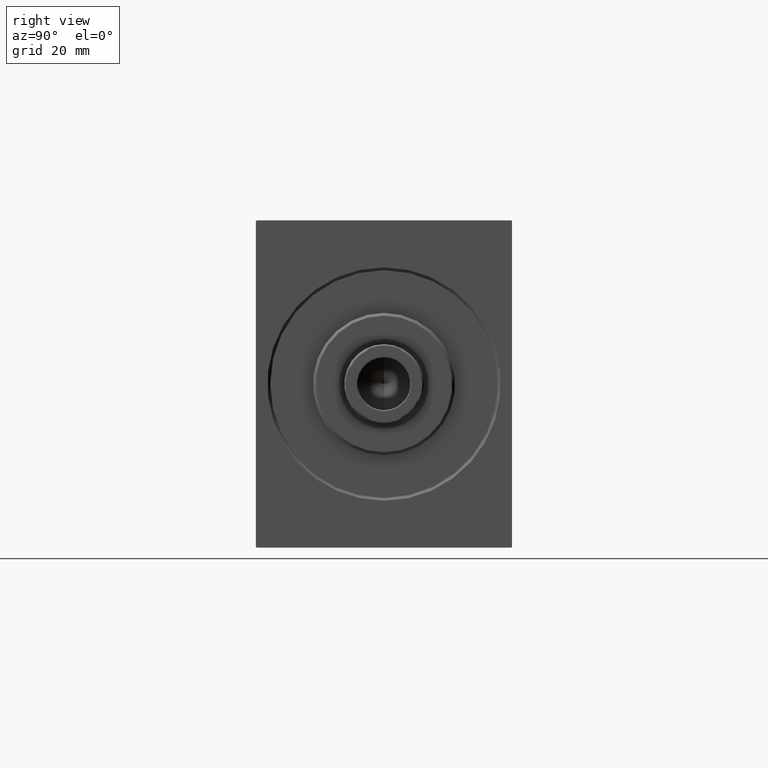
[diagram: clean part render]
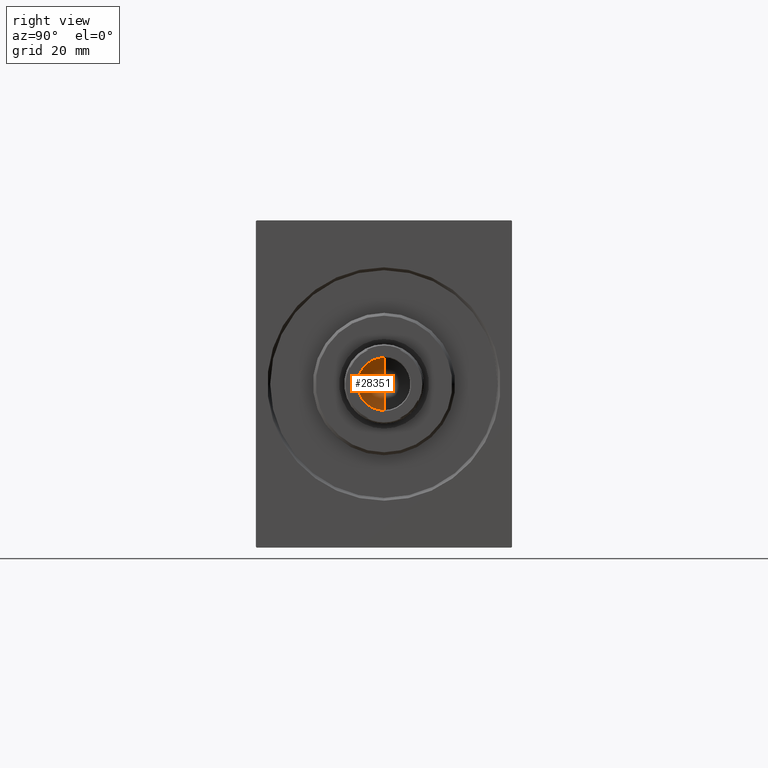
[diagram: same view with one face highlighted and labeled with its STEP entity id]
A machine part, right view. The second image highlights one B-rep face of the part: STEP entity #28351.
In plain terms, the highlighted conical surface has half-angle 59 deg.
Its self-contained STEP definition (entity closure, byte-faithful):
#861 = FACE_OUTER_BOUND ( 'NONE', #1893, .T. ) ;
#1893 = EDGE_LOOP ( 'NONE', ( #35735, #20046, #20665 ) ) ;
#3449 = EDGE_CURVE ( 'NONE', #27767, #30494, #6681, .T. ) ;
#4798 = LINE ( 'NONE', #25160, #23144 ) ;
#6277 = LINE ( 'NONE', #19956, #7213 ) ;
#6681 = CIRCLE ( 'NONE', #40612, 9.249999999999994671 ) ;
#7213 = VECTOR ( 'NONE', #16685, 1000.000000000000000 ) ;
#7794 = DIRECTION ( 'NONE',  ( -0.000000000000000000, -0.000000000000000000, 1.000000000000000000 ) ) ;
#14086 = DIRECTION ( 'NONE',  ( 1.000000000000000000, 0.000000000000000000, 0.000000000000000000 ) ) ;
#14087 = DIRECTION ( 'NONE',  ( 1.000000000000000000, 0.000000000000000000, 0.000000000000000000 ) ) ;
#16685 = DIRECTION ( 'NONE',  ( -0.8571673007021113344, 1.049727191138617463E-16, 0.5150380749100558209 ) ) ;
#19137 = AXIS2_PLACEMENT_3D ( 'NONE', #30785, #7794, #14086 ) ;
#19834 = CONICAL_SURFACE ( 'NONE', #19137, 9.249999999999994671, 1.029744258676652535 ) ;
#19956 = CARTESIAN_POINT ( 'NONE',  ( -9.249999999999994671, 1.132798289211300909E-15, 169.0000000000000000 ) ) ;
#20046 = ORIENTED_EDGE ( 'NONE', *, *, #41403, .T. ) ;
#20082 = CARTESIAN_POINT ( 'NONE',  ( -9.249999999999994671, 1.132798289211300909E-15, 169.0000000000000000 ) ) ;
#20627 = CARTESIAN_POINT ( 'NONE',  ( -6.793016015247754405E-15, 0.000000000000000000, 163.4420392739950501 ) ) ;
#20665 = ORIENTED_EDGE ( 'NONE', *, *, #3449, .T. ) ;
#22287 = EDGE_CURVE ( 'NONE', #32098, #30494, #4798, .T. ) ;
#23144 = VECTOR ( 'NONE', #24735, 1000.000000000000000 ) ;
#24735 = DIRECTION ( 'NONE',  ( 0.8571673007021113344, 0.000000000000000000, 0.5150380749100558209 ) ) ;
#25160 = CARTESIAN_POINT ( 'NONE',  ( 9.249999999999994671, 0.000000000000000000, 169.0000000000000000 ) ) ;
#25291 = CARTESIAN_POINT ( 'NONE',  ( 9.249999999999994671, 0.000000000000000000, 169.0000000000000000 ) ) ;
#27109 = CARTESIAN_POINT ( 'NONE',  ( 0.000000000000000000, 0.000000000000000000, 169.0000000000000000 ) ) ;
#27767 = VERTEX_POINT ( 'NONE', #20082 ) ;
#28351 = ADVANCED_FACE ( 'NONE', ( #861 ), #19834, .F. ) ;
#30494 = VERTEX_POINT ( 'NONE', #25291 ) ;
#30569 = DIRECTION ( 'NONE',  ( -0.000000000000000000, -0.000000000000000000, 1.000000000000000000 ) ) ;
#30785 = CARTESIAN_POINT ( 'NONE',  ( 0.000000000000000000, 0.000000000000000000, 169.0000000000000000 ) ) ;
#32098 = VERTEX_POINT ( 'NONE', #20627 ) ;
#35735 = ORIENTED_EDGE ( 'NONE', *, *, #22287, .F. ) ;
#40612 = AXIS2_PLACEMENT_3D ( 'NONE', #27109, #30569, #14087 ) ;
#41403 = EDGE_CURVE ( 'NONE', #32098, #27767, #6277, .T. ) ;